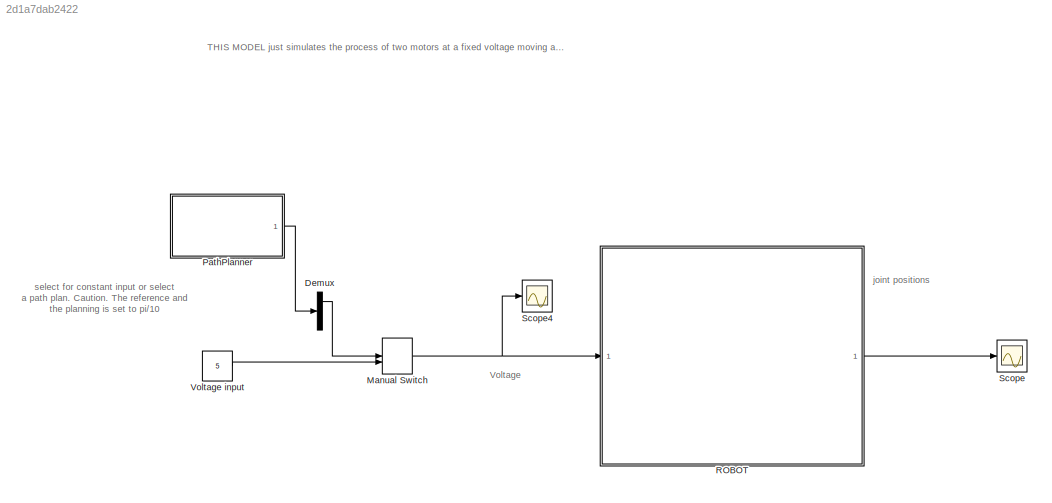
MODEL slx_2d1a7dab2422
KIND model
CONFIG AbsTol = auto
CONFIG EnableMultiTasking = on
CONFIG FixedStep = 0.005
CONFIG MaxStep = auto
CONFIG MinStep = auto
CONFIG RelTol = 1e-3
CONFIG SampleTimeConstraint = Unconstrained
CONFIG Solver = ode23
CONFIG SolverName = ode23
CONFIG StartTime = 0.0
CONFIG StopTime = 10
BLOCK [Demux] Demux
  DisplayOption = bar
  Outputs = 3
  Ports = [1, 3]
BLOCK [ManualSwitch] Manual Switch
  CurrentSetting = 0
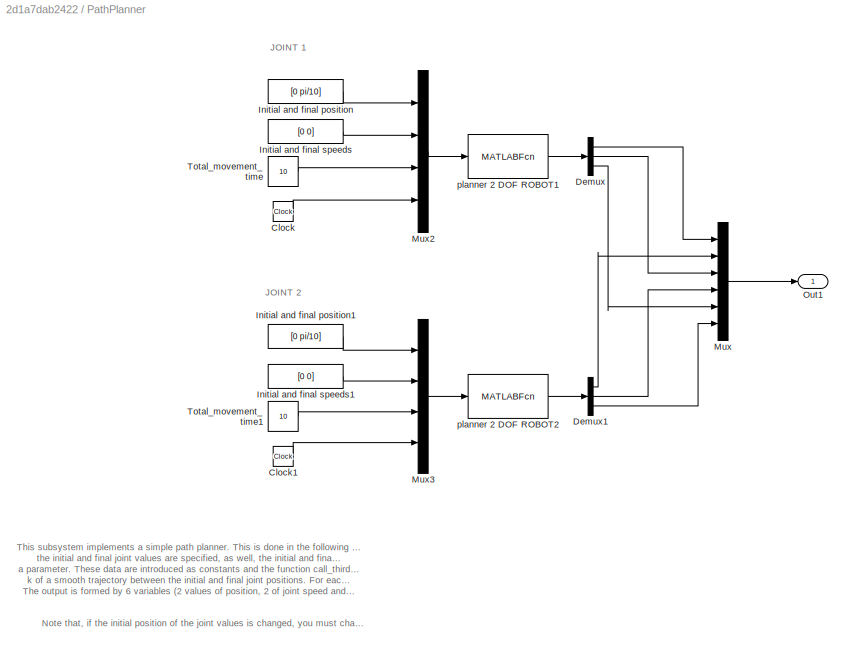
BLOCK [SubSystem] PathPlanner
  Ports = [0, 1]
  RequestExecContextInheritance = off
  Variant = off
BLOCK [Clock] PathPlanner/Clock
BLOCK [Clock] PathPlanner/Clock1
BLOCK [Demux] PathPlanner/Demux
  DisplayOption = bar
  Outputs = 3
  Ports = [1, 3]
BLOCK [Demux] PathPlanner/Demux1
  DisplayOption = bar
  Outputs = 3
  Ports = [1, 3]
BLOCK [Constant] PathPlanner/Initial and final position
  Value = [0 pi/10]
BLOCK [Constant] PathPlanner/Initial and final position1
  Value = [0 pi/10]
BLOCK [Constant] PathPlanner/Initial and final speeds
  Value = [0 0]
BLOCK [Constant] PathPlanner/Initial and final speeds1
  Value = [0 0]
BLOCK [Mux] PathPlanner/Mux
  DisplayOption = bar
  Inputs = 6
  Ports = [6, 1]
BLOCK [Mux] PathPlanner/Mux2
  DisplayOption = bar
  Ports = [4, 1]
BLOCK [Mux] PathPlanner/Mux3
  DisplayOption = bar
  Ports = [4, 1]
BLOCK [Outport] PathPlanner/Out1
  IconDisplay = Port number
BLOCK [Constant] PathPlanner/Total_movement_time
  Value = 10
BLOCK [Constant] PathPlanner/Total_movement_time1
  Value = 10
BLOCK [MATLABFcn] PathPlanner/planner 2 DOF ROBOT1
  MATLABFcn = call_third_order_planner(u)
  OutputDimensions = 3
  Ports = [1, 1]
BLOCK [MATLABFcn] PathPlanner/planner 2 DOF ROBOT2
  MATLABFcn = call_third_order_planner(u)
  OutputDimensions = 3
  Ports = [1, 1]
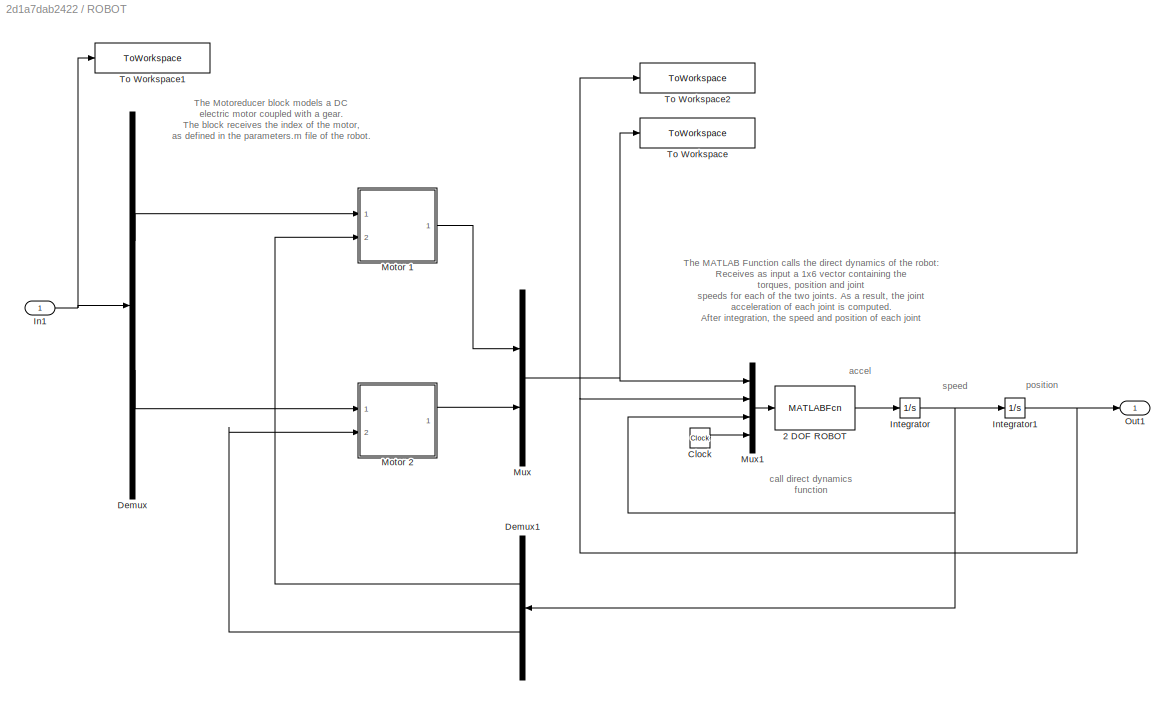
BLOCK [SubSystem] ROBOT
  Ports = [1, 1]
  RequestExecContextInheritance = off
  Variant = off
BLOCK [MATLABFcn] ROBOT/2 DOF ROBOT
  MATLABFcn = call_direct_dynamics(u)
  OutputDimensions = 2
  Ports = [1, 1]
BLOCK [Clock] ROBOT/Clock
BLOCK [Demux] ROBOT/Demux
  DisplayOption = bar
  Outputs = 2
  Ports = [1, 2]
BLOCK [Demux] ROBOT/Demux1
  DisplayOption = bar
  Outputs = 2
  Ports = [1, 2]
BLOCK [Inport] ROBOT/In1
  IconDisplay = Port number
BLOCK [Integrator] ROBOT/Integrator
  InitialCondition = [0 0 ]
  Ports = [1, 1]
BLOCK [Integrator] ROBOT/Integrator1
  InitialCondition = [0 0]
  Ports = [1, 1]
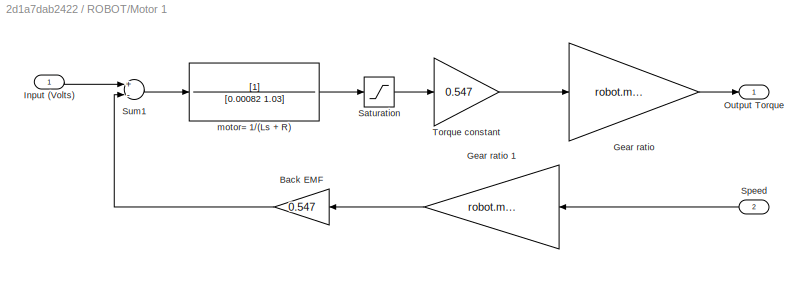
BLOCK [SubSystem] ROBOT/Motor 1
  Ports = [2, 1]
  RequestExecContextInheritance = off
  Variant = off
BLOCK [Gain] ROBOT/Motor 1/Back EMF
  Gain = 0.547
BLOCK [Gain] ROBOT/Motor 1/Gear ratio
  Gain = robot.motors.G(1)
BLOCK [Gain] ROBOT/Motor 1/Gear ratio 1
  Gain = robot.motors.G(1)
BLOCK [Inport] ROBOT/Motor 1/Input (Volts)
  IconDisplay = Port number
BLOCK [Outport] ROBOT/Motor 1/Output Torque
  IconDisplay = Port number
  InitialOutput = 0
BLOCK [Saturate] ROBOT/Motor 1/Saturation
  InputPortMap = u0
  LowerLimit = -30
  Ports = [1, 1]
  UpperLimit = 30
  ZeroCross = off
BLOCK [Inport] ROBOT/Motor 1/Speed
  IconDisplay = Port number
  Port = 2
BLOCK [Sum] ROBOT/Motor 1/Sum1
  Inputs = +-
  Ports = [2, 1]
BLOCK [Gain] ROBOT/Motor 1/Torque constant
  Gain = 0.547
BLOCK [TransferFcn] ROBOT/Motor 1/motor= 1//(Ls + R)
  Denominator = [0.00082 1.03]
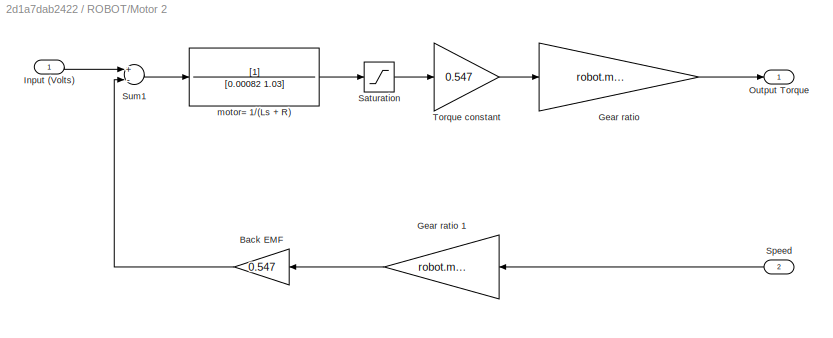
BLOCK [SubSystem] ROBOT/Motor 2
  Ports = [2, 1]
  RequestExecContextInheritance = off
  Variant = off
BLOCK [Gain] ROBOT/Motor 2/Back EMF
  Gain = 0.547
BLOCK [Gain] ROBOT/Motor 2/Gear ratio
  Gain = robot.motors.G(2)
BLOCK [Gain] ROBOT/Motor 2/Gear ratio 1
  Gain = robot.motors.G(2)
BLOCK [Inport] ROBOT/Motor 2/Input (Volts)
  IconDisplay = Port number
BLOCK [Outport] ROBOT/Motor 2/Output Torque
  IconDisplay = Port number
  InitialOutput = 0
BLOCK [Saturate] ROBOT/Motor 2/Saturation
  InputPortMap = u0
  LowerLimit = -30
  Ports = [1, 1]
  UpperLimit = 30
  ZeroCross = off
BLOCK [Inport] ROBOT/Motor 2/Speed
  IconDisplay = Port number
  Port = 2
BLOCK [Sum] ROBOT/Motor 2/Sum1
  Inputs = +-
  Ports = [2, 1]
BLOCK [Gain] ROBOT/Motor 2/Torque constant
  Gain = 0.547
BLOCK [TransferFcn] ROBOT/Motor 2/motor= 1//(Ls + R)
  Denominator = [0.00082 1.03]
BLOCK [Mux] ROBOT/Mux
  DisplayOption = bar
  Inputs = 2
  Ports = [2, 1]
BLOCK [Mux] ROBOT/Mux1
  DisplayOption = bar
  Ports = [4, 1]
BLOCK [Outport] ROBOT/Out1
  IconDisplay = Port number
BLOCK [ToWorkspace] ROBOT/To Workspace
  MaxDataPoints = inf
  Ports = [1]
  SampleTime = -1
  VariableName = joint_torques
BLOCK [ToWorkspace] ROBOT/To Workspace1
  MaxDataPoints = inf
  Ports = [1]
  SampleTime = -1
  VariableName = control_actions
BLOCK [ToWorkspace] ROBOT/To Workspace2
  MaxDataPoints = inf
  Ports = [1]
  SampleTime = -1
  VariableName = joint_positions
BLOCK [Scope] Scope
  NumInputPorts = 1
  Ports = [1]
  ScopeSpecificationString = C++SS(StrPVP('Location','[983, 332, 2129, 1293]'),StrPVP('Open','off'),MxPVP('AxesTitles',53,'struct(''axes1'',''%<SignalLabel>'')'),MxPVP('ScopeGraphics',56,'struct(''FigureColor'',''[0.5 0.5 0.5]'',''AxesColor'',''[0 0 0]'',''AxesTickColor'',''[1 1 1]'',''LineColors'',''[1 1 0;1 0 1;0 1 1;1 0 0;0 1 0;0 0 1]'',''LineStyles'',''-|-|-|-|-|-'',''LineWidths'',''[0.5 0.5 0.5 0.5 0.5 0.5]'',''MarkerSty...<+301ch>
BLOCK [Scope] Scope4
  NumInputPorts = 1
  Ports = [1]
  ScopeSpecificationString = C++SS(StrPVP('Location','[62, 145, 1275, 638]'),StrPVP('Open','off'),StrPVP('ZoomMode','yonly'),MxPVP('AxesTitles',53,'struct(''axes1'',''%<SignalLabel>'')'),StrPVP('YMin','-2.5'),StrPVP('YMax','50'),StrPVP('SaveName','ScopeData4'),StrPVP('DataFormat','StructureWithTime'),StrPVP('LimitDataPoints','off'),StrPVP('BlockParamSampleTime','0'),StrPVP('Decimation','1'),StrPVP('BlockParamSampleInput','off...<+3ch>
BLOCK [Constant] Voltage input 
  Value = 5
ANNOTATION (root): THIS MODEL just simulates the process of two motors at a fixed voltage moving a 2 DOF robot.
ANNOTATION (root): Voltage
ANNOTATION (root): joint positions
ANNOTATION (root): select for constant input or select a path plan. Caution. The reference and the planning is set to pi/10
ANNOTATION PathPlanner: JOINT 1
ANNOTATION PathPlanner: JOINT 2
ANNOTATION PathPlanner: Note that, if the initial position of the joint values is changed, you must change the initial values of the position integrator. The same applies to the speed.
ANNOTATION PathPlanner: This subsystem implements a simple path planner. This is done in the following way: For each of the two joints, the initial and final joint values are specified, as well, the initial and final speeds are also specified. The total time needed to perform the movement is also a parameter. These data are introduced as constants and the function call_third_order_planner is executed. At each time step, ...<+322ch>
ANNOTATION ROBOT: The MATLAB Function calls the direct dynamics of the robot: Receives as input a 1x6 vector containing the torques, position and joint speeds for each of the two joints. As a result, the joint acceleration of each joint is computed. After integration, the speed and position of each joint is computed and sent back to the controller
ANNOTATION ROBOT: The Motoreducer block models a DC electric motor coupled with a gear. The block receives the index of the motor, as defined in the parameters.m file of the robot.
ANNOTATION ROBOT: accel
ANNOTATION ROBOT: call direct dynamics function
ANNOTATION ROBOT: position
ANNOTATION ROBOT: speed
LINE Demux:1 -> Manual Switch:1
NET Manual Switch:1 -> ROBOT:1, Scope4:1
LINE PathPlanner/Clock1:1 -> PathPlanner/Mux3:4
LINE PathPlanner/Clock:1 -> PathPlanner/Mux2:4
LINE PathPlanner/Demux1:1 -> PathPlanner/Mux:2
LINE PathPlanner/Demux1:2 -> PathPlanner/Mux:4
LINE PathPlanner/Demux1:3 -> PathPlanner/Mux:6
LINE PathPlanner/Demux:1 -> PathPlanner/Mux:1
LINE PathPlanner/Demux:2 -> PathPlanner/Mux:3
LINE PathPlanner/Demux:3 -> PathPlanner/Mux:5
LINE PathPlanner/Initial and final position1:1 -> PathPlanner/Mux3:1
LINE PathPlanner/Initial and final position:1 -> PathPlanner/Mux2:1
LINE PathPlanner/Initial and final speeds1:1 -> PathPlanner/Mux3:2
LINE PathPlanner/Initial and final speeds:1 -> PathPlanner/Mux2:2
LINE PathPlanner/Mux2:1 -> PathPlanner/planner 2 DOF ROBOT1:1
LINE PathPlanner/Mux3:1 -> PathPlanner/planner 2 DOF ROBOT2:1
LINE PathPlanner/Mux:1 -> PathPlanner/Out1:1
LINE PathPlanner/Total_movement_time1:1 -> PathPlanner/Mux3:3
LINE PathPlanner/Total_movement_time:1 -> PathPlanner/Mux2:3
LINE PathPlanner/planner 2 DOF ROBOT1:1 -> PathPlanner/Demux:1
LINE PathPlanner/planner 2 DOF ROBOT2:1 -> PathPlanner/Demux1:1
LINE PathPlanner:1 -> Demux:1
LINE ROBOT/2 DOF ROBOT:1 -> ROBOT/Integrator:1
LINE ROBOT/Clock:1 -> ROBOT/Mux1:4
LINE ROBOT/Demux1:1 -> ROBOT/Motor 1:2
LINE ROBOT/Demux1:2 -> ROBOT/Motor 2:2
LINE ROBOT/Demux:1 -> ROBOT/Motor 1:1
LINE ROBOT/Demux:2 -> ROBOT/Motor 2:1
NET ROBOT/In1:1 -> ROBOT/Demux:1, ROBOT/To Workspace1:1
NET ROBOT/Integrator1:1 -> ROBOT/Mux1:2, ROBOT/Out1:1, ROBOT/To Workspace2:1
NET ROBOT/Integrator:1 -> ROBOT/Demux1:1, ROBOT/Integrator1:1, ROBOT/Mux1:3
LINE ROBOT/Motor 1/Back EMF:1 -> ROBOT/Motor 1/Sum1:2
LINE ROBOT/Motor 1/Gear ratio 1:1 -> ROBOT/Motor 1/Back EMF:1
LINE ROBOT/Motor 1/Gear ratio:1 -> ROBOT/Motor 1/Output Torque:1
LINE ROBOT/Motor 1/Input (Volts):1 -> ROBOT/Motor 1/Sum1:1
LINE ROBOT/Motor 1/Saturation:1 -> ROBOT/Motor 1/Torque constant:1
LINE ROBOT/Motor 1/Speed:1 -> ROBOT/Motor 1/Gear ratio 1:1
LINE ROBOT/Motor 1/Sum1:1 -> ROBOT/Motor 1/motor= 1//(Ls + R):1
LINE ROBOT/Motor 1/Torque constant:1 -> ROBOT/Motor 1/Gear ratio:1
LINE ROBOT/Motor 1/motor= 1//(Ls + R):1 -> ROBOT/Motor 1/Saturation:1
LINE ROBOT/Motor 1:1 -> ROBOT/Mux:1
LINE ROBOT/Motor 2/Back EMF:1 -> ROBOT/Motor 2/Sum1:2
LINE ROBOT/Motor 2/Gear ratio 1:1 -> ROBOT/Motor 2/Back EMF:1
LINE ROBOT/Motor 2/Gear ratio:1 -> ROBOT/Motor 2/Output Torque:1
LINE ROBOT/Motor 2/Input (Volts):1 -> ROBOT/Motor 2/Sum1:1
LINE ROBOT/Motor 2/Saturation:1 -> ROBOT/Motor 2/Torque constant:1
LINE ROBOT/Motor 2/Speed:1 -> ROBOT/Motor 2/Gear ratio 1:1
LINE ROBOT/Motor 2/Sum1:1 -> ROBOT/Motor 2/motor= 1//(Ls + R):1
LINE ROBOT/Motor 2/Torque constant:1 -> ROBOT/Motor 2/Gear ratio:1
LINE ROBOT/Motor 2/motor= 1//(Ls + R):1 -> ROBOT/Motor 2/Saturation:1
LINE ROBOT/Motor 2:1 -> ROBOT/Mux:2
LINE ROBOT/Mux1:1 -> ROBOT/2 DOF ROBOT:1
NET ROBOT/Mux:1 -> ROBOT/Mux1:1, ROBOT/To Workspace:1
LINE ROBOT:1 -> Scope:1
LINE Voltage input :1 -> Manual Switch:2
note: NET lines group one-source signal fan-out (src -> all destinations, sorted); 1:1 wires keep LINE
